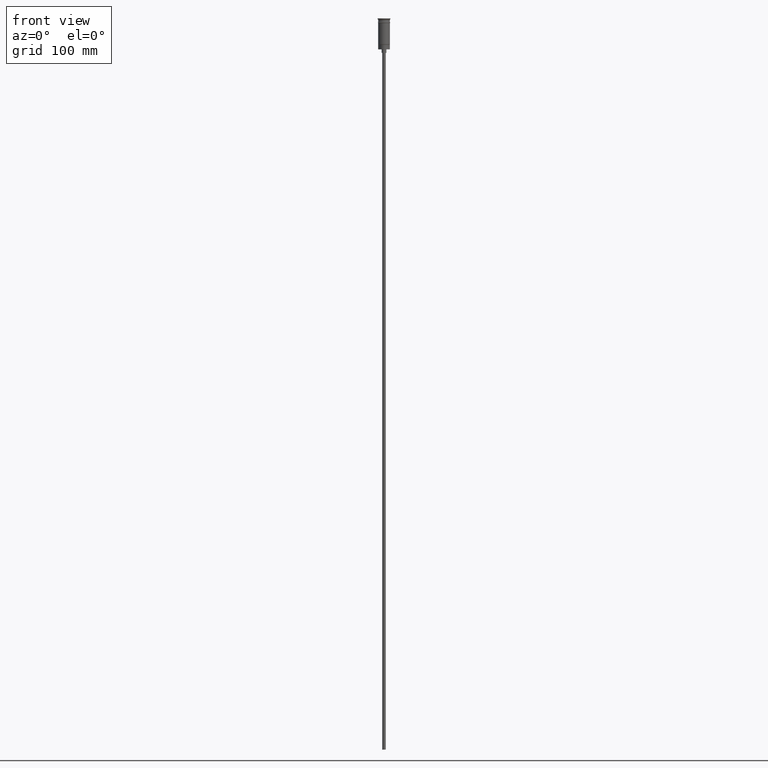
[diagram: clean part render]
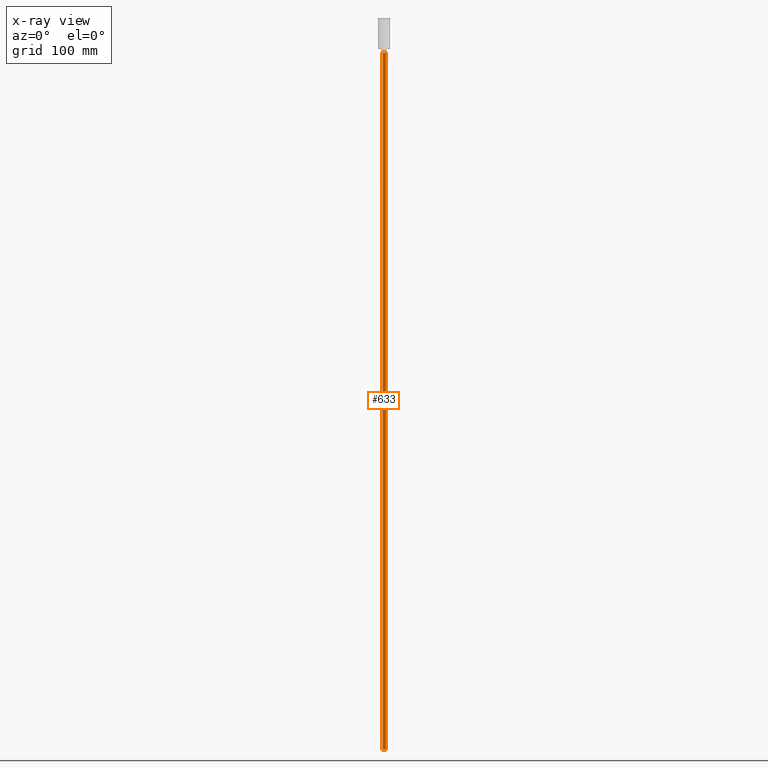
[diagram: x-ray — body ghosted, one internal face saturated and labeled with its STEP entity id]
A machine part, front view, then the same camera in x-ray: the body is ghosted and one INTERNAL B-rep face — a face not visible from any outside direction — is saturated and labeled: STEP entity #633.
In plain terms, the highlighted cylindrical surface (edge-blend (fillet) strip) has radius 1.5 mm, axis along (-0, -0, 1).
Its self-contained STEP definition (entity closure, byte-faithful):
#91 = VERTEX_POINT ( 'NONE', #1277 ) ;
#114 = AXIS2_PLACEMENT_3D ( 'NONE', #393, #652, #888 ) ;
#234 = EDGE_CURVE ( 'NONE', #91, #1081, #500, .T. ) ;
#242 = CARTESIAN_POINT ( 'NONE',  ( 0.000000000000000000, 0.000000000000000000, -626.5000000000000000 ) ) ;
#256 = LINE ( 'NONE', #804, #1047 ) ;
#279 = EDGE_CURVE ( 'NONE', #457, #1081, #1183, .T. ) ;
#327 = DIRECTION ( 'NONE',  ( -1.000000000000000000, 0.000000000000000000, 0.000000000000000000 ) ) ;
#393 = CARTESIAN_POINT ( 'NONE',  ( 0.000000000000000000, 0.000000000000000000, -626.5000000000000000 ) ) ;
#406 = CYLINDRICAL_SURFACE ( 'NONE', #114, 1.500000000000000222 ) ;
#444 = EDGE_CURVE ( 'NONE', #523, #457, #1233, .T. ) ;
#445 = DIRECTION ( 'NONE',  ( -0.000000000000000000, -0.000000000000000000, 1.000000000000000000 ) ) ;
#457 = VERTEX_POINT ( 'NONE', #501 ) ;
#459 = CARTESIAN_POINT ( 'NONE',  ( 0.000000000000000000, 0.000000000000000000, -29.50000000000000000 ) ) ;
#478 = AXIS2_PLACEMENT_3D ( 'NONE', #242, #711, #745 ) ;
#500 = CIRCLE ( 'NONE', #1407, 1.500000000000000222 ) ;
#501 = CARTESIAN_POINT ( 'NONE',  ( 1.500000000000000222, 0.000000000000000000, -626.5000000000000000 ) ) ;
#523 = VERTEX_POINT ( 'NONE', #1398 ) ;
#571 = CARTESIAN_POINT ( 'NONE',  ( 1.500000000000000222, 0.000000000000000000, -626.5000000000000000 ) ) ;
#598 = ORIENTED_EDGE ( 'NONE', *, *, #1527, .T. ) ;
#633 = ADVANCED_FACE ( 'NONE', ( #1142 ), #406, .T. ) ;
#644 = ORIENTED_EDGE ( 'NONE', *, *, #234, .T. ) ;
#652 = DIRECTION ( 'NONE',  ( -0.000000000000000000, -0.000000000000000000, 1.000000000000000000 ) ) ;
#711 = DIRECTION ( 'NONE',  ( 0.000000000000000000, 0.000000000000000000, -1.000000000000000000 ) ) ;
#745 = DIRECTION ( 'NONE',  ( -1.000000000000000000, 0.000000000000000000, 0.000000000000000000 ) ) ;
#804 = CARTESIAN_POINT ( 'NONE',  ( -1.500000000000000222, 1.836970198721030181E-16, -626.5000000000000000 ) ) ;
#888 = DIRECTION ( 'NONE',  ( 1.000000000000000000, 0.000000000000000000, 0.000000000000000000 ) ) ;
#1042 = VECTOR ( 'NONE', #445, 1000.000000000000000 ) ;
#1047 = VECTOR ( 'NONE', #1166, 1000.000000000000000 ) ;
#1081 = VERTEX_POINT ( 'NONE', #1397 ) ;
#1083 = ORIENTED_EDGE ( 'NONE', *, *, #279, .F. ) ;
#1142 = FACE_OUTER_BOUND ( 'NONE', #1187, .T. ) ;
#1166 = DIRECTION ( 'NONE',  ( -0.000000000000000000, -0.000000000000000000, 1.000000000000000000 ) ) ;
#1183 = LINE ( 'NONE', #571, #1042 ) ;
#1187 = EDGE_LOOP ( 'NONE', ( #1401, #598, #644, #1083 ) ) ;
#1233 = CIRCLE ( 'NONE', #478, 1.500000000000000222 ) ;
#1277 = CARTESIAN_POINT ( 'NONE',  ( -1.500000000000000222, 1.836970198721030181E-16, -29.50000000000000000 ) ) ;
#1397 = CARTESIAN_POINT ( 'NONE',  ( 1.500000000000000222, 0.000000000000000000, -29.50000000000000000 ) ) ;
#1398 = CARTESIAN_POINT ( 'NONE',  ( -1.500000000000000222, 1.836970198721030181E-16, -626.5000000000000000 ) ) ;
#1401 = ORIENTED_EDGE ( 'NONE', *, *, #444, .F. ) ;
#1407 = AXIS2_PLACEMENT_3D ( 'NONE', #459, #1553, #327 ) ;
#1527 = EDGE_CURVE ( 'NONE', #523, #91, #256, .T. ) ;
#1553 = DIRECTION ( 'NONE',  ( 0.000000000000000000, 0.000000000000000000, -1.000000000000000000 ) ) ;